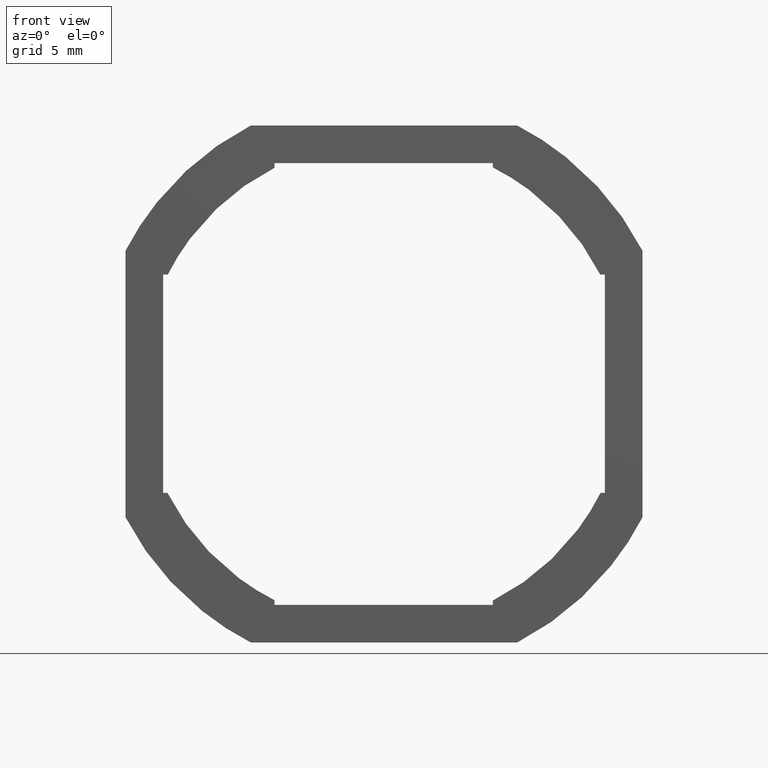
[diagram: clean part render]
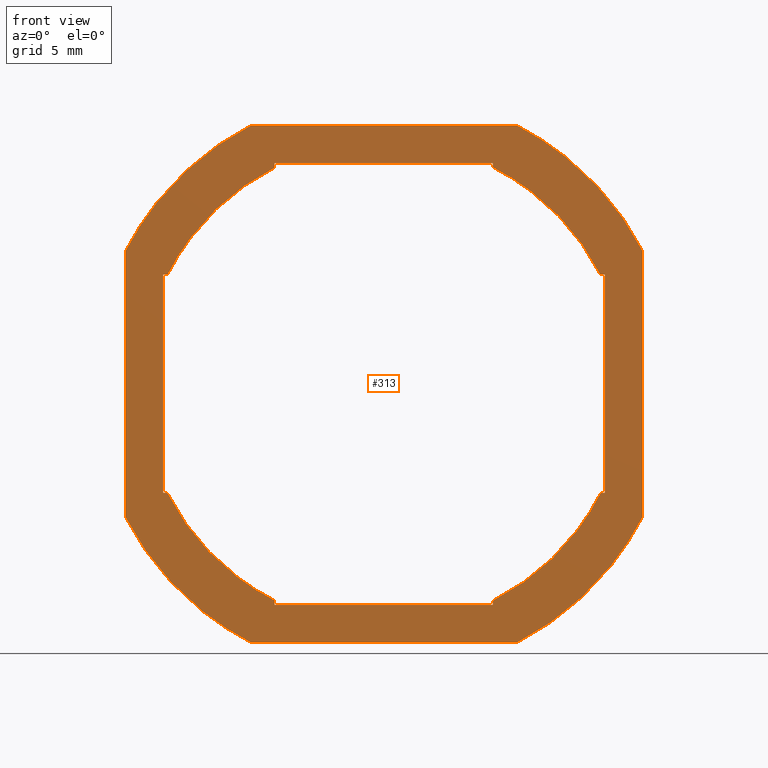
[diagram: same view with one face highlighted and labeled with its STEP entity id]
A machine part, front view. The second image highlights one B-rep face of the part: STEP entity #313.
In plain terms, the highlighted face is a freeform B-spline surface patch.
Its self-contained STEP definition (entity closure, byte-faithful):
#44=CARTESIAN_POINT('',(-13.198801030982510,0.0,13.198801030982469));
#45=CARTESIAN_POINT('',(13.198801245559199,0.0,13.198801030982469));
#46=CARTESIAN_POINT('',(-13.198801030982510,0.0,-13.198801245559221));
#47=CARTESIAN_POINT('',(13.198801245559199,0.0,-13.198801245559221));
#48=B_SPLINE_SURFACE_WITH_KNOTS('',1,1,((#44,#46),(#45,#47)),.UNSPECIFIED.,.F.,.F.,.U.,(2,2),(2,2),(0.0,26.397602276541718),(0.0,26.397602276541701),.UNSPECIFIED.);
#49=CARTESIAN_POINT('',(-6.184658732181810,0.0,12.000000569969499));
#50=VERTEX_POINT('',#49);
#51=CARTESIAN_POINT('',(6.184658732181830,0.0,12.000000569969499));
#52=VERTEX_POINT('',#51);
#53=CARTESIAN_POINT('',(-6.184658732181810,0.0,12.000000569969499));
#54=CARTESIAN_POINT('',(6.184658732181830,0.0,12.000000569969499));
#55=QUASI_UNIFORM_CURVE('',1,(#53,#54),.UNSPECIFIED.,.F.,.U.);
#56=EDGE_CURVE('',#50,#52,#55,.T.);
#57=ORIENTED_EDGE('',*,*,#56,.F.);
#58=CARTESIAN_POINT('',(-12.000000569969400,0.0,6.184658732181750));
#59=VERTEX_POINT('',#58);
#60=CARTESIAN_POINT('',(-6.184658732181801,0.0,12.000000569969490));
#61=CARTESIAN_POINT('',(-10.022184869378352,0.0,10.022184869378339));
#62=CARTESIAN_POINT('',(-12.000000569969400,0.0,6.184658732181750));
#70=(BOUNDED_CURVE()B_SPLINE_CURVE(2,(#60,#61,#62),.UNSPECIFIED.,.F.,.U.)CURVE()GEOMETRIC_REPRESENTATION_ITEM()QUASI_UNIFORM_CURVE()RATIONAL_B_SPLINE_CURVE((1.0,0.952481132990554,1.0))REPRESENTATION_ITEM(''));
#71=EDGE_CURVE('',#50,#59,#70,.T.);
#72=ORIENTED_EDGE('',*,*,#71,.T.);
#73=CARTESIAN_POINT('',(-12.000000569969540,0.0,-6.184658732181720));
#74=VERTEX_POINT('',#73);
#75=CARTESIAN_POINT('',(-12.000000569969540,0.0,-6.184658732181720));
#76=CARTESIAN_POINT('',(-12.000000569969400,0.0,6.184658732181750));
#77=QUASI_UNIFORM_CURVE('',1,(#75,#76),.UNSPECIFIED.,.F.,.U.);
#78=EDGE_CURVE('',#74,#59,#77,.T.);
#79=ORIENTED_EDGE('',*,*,#78,.F.);
#80=CARTESIAN_POINT('',(-6.184658732181759,0.0,-12.000000569969419));
#81=VERTEX_POINT('',#80);
#82=CARTESIAN_POINT('',(-12.000000569969540,0.0,-6.184658732181720));
#83=CARTESIAN_POINT('',(-10.022184869378391,0.0,-10.022184869378325));
#84=CARTESIAN_POINT('',(-6.184658732181759,0.0,-12.000000569969419));
#92=(BOUNDED_CURVE()B_SPLINE_CURVE(2,(#82,#83,#84),.UNSPECIFIED.,.F.,.U.)CURVE()GEOMETRIC_REPRESENTATION_ITEM()QUASI_UNIFORM_CURVE()RATIONAL_B_SPLINE_CURVE((1.0,0.952481132990553,1.0))REPRESENTATION_ITEM(''));
#93=EDGE_CURVE('',#74,#81,#92,.T.);
#94=ORIENTED_EDGE('',*,*,#93,.T.);
#95=CARTESIAN_POINT('',(6.184658732181750,0.0,-12.000000569969520));
#96=VERTEX_POINT('',#95);
#97=CARTESIAN_POINT('',(6.184658732181750,0.0,-12.000000569969520));
#98=CARTESIAN_POINT('',(-6.184658732181759,0.0,-12.000000569969419));
#99=QUASI_UNIFORM_CURVE('',1,(#97,#98),.UNSPECIFIED.,.F.,.U.);
#100=EDGE_CURVE('',#96,#81,#99,.T.);
#101=ORIENTED_EDGE('',*,*,#100,.F.);
#102=CARTESIAN_POINT('',(12.000000569969419,0.0,-6.184658732181750));
#103=VERTEX_POINT('',#102);
#104=CARTESIAN_POINT('',(6.184658732181743,0.0,-12.000000569969520));
#105=CARTESIAN_POINT('',(10.022184869378338,0.0,-10.022184869378369));
#106=CARTESIAN_POINT('',(12.000000569969419,0.0,-6.184658732181750));
#114=(BOUNDED_CURVE()B_SPLINE_CURVE(2,(#104,#105,#106),.UNSPECIFIED.,.F.,.U.)CURVE()GEOMETRIC_REPRESENTATION_ITEM()QUASI_UNIFORM_CURVE()RATIONAL_B_SPLINE_CURVE((1.0,0.952481132990553,1.0))REPRESENTATION_ITEM(''));
#115=EDGE_CURVE('',#96,#103,#114,.T.);
#116=ORIENTED_EDGE('',*,*,#115,.T.);
#117=CARTESIAN_POINT('',(12.000000569969499,0.0,6.184658732181820));
#118=VERTEX_POINT('',#117);
#119=CARTESIAN_POINT('',(12.000000569969499,0.0,6.184658732181820));
#120=CARTESIAN_POINT('',(12.000000569969419,0.0,-6.184658732181750));
#121=QUASI_UNIFORM_CURVE('',1,(#119,#120),.UNSPECIFIED.,.F.,.U.);
#122=EDGE_CURVE('',#118,#103,#121,.T.);
#123=ORIENTED_EDGE('',*,*,#122,.F.);
#124=CARTESIAN_POINT('',(12.000000569969499,0.0,6.184658732181810));
#125=CARTESIAN_POINT('',(10.022184869378350,0.0,10.022184869378339));
#126=CARTESIAN_POINT('',(6.184658732181829,0.0,12.000000569969499));
#134=(BOUNDED_CURVE()B_SPLINE_CURVE(2,(#124,#125,#126),.UNSPECIFIED.,.F.,.U.)CURVE()GEOMETRIC_REPRESENTATION_ITEM()QUASI_UNIFORM_CURVE()RATIONAL_B_SPLINE_CURVE((1.0,0.952481132990554,1.0))REPRESENTATION_ITEM(''));
#135=EDGE_CURVE('',#118,#52,#134,.T.);
#136=ORIENTED_EDGE('',*,*,#135,.T.);
#137=EDGE_LOOP('',(#57,#72,#79,#94,#101,#116,#123,#136));
#138=FACE_OUTER_BOUND('',#137,.T.);
#139=CARTESIAN_POINT('',(10.050000477349361,0.0,5.055690104038270));
#140=VERTEX_POINT('',#139);
#141=CARTESIAN_POINT('',(5.055690104038360,0.0,10.050000477349300));
#142=VERTEX_POINT('',#141);
#143=CARTESIAN_POINT('',(10.050000477349350,0.0,5.055690104038258));
#144=CARTESIAN_POINT('',(8.378465806703092,0.0,8.378465806703007));
#145=CARTESIAN_POINT('',(5.055690104038360,0.0,10.050000477349300));
#153=(BOUNDED_CURVE()B_SPLINE_CURVE(2,(#143,#144,#145),.UNSPECIFIED.,.F.,.U.)CURVE()GEOMETRIC_REPRESENTATION_ITEM()QUASI_UNIFORM_CURVE()RATIONAL_B_SPLINE_CURVE((1.0,0.949452065534999,1.0))REPRESENTATION_ITEM(''));
#154=EDGE_CURVE('',#140,#142,#153,.T.);
#155=ORIENTED_EDGE('',*,*,#154,.F.);
#156=CARTESIAN_POINT('',(10.050000477349400,0.0,5.081069177405830));
#157=VERTEX_POINT('',#156);
#158=CARTESIAN_POINT('',(10.050000477349400,0.0,5.081069177405830));
#159=CARTESIAN_POINT('',(10.050000477349361,0.0,5.055690104038270));
#160=QUASI_UNIFORM_CURVE('',1,(#158,#159),.UNSPECIFIED.,.F.,.U.);
#161=EDGE_CURVE('',#157,#140,#160,.T.);
#162=ORIENTED_EDGE('',*,*,#161,.F.);
#163=CARTESIAN_POINT('',(10.250000486848860,0.0,5.081069177405830));
#164=VERTEX_POINT('',#163);
#165=CARTESIAN_POINT('',(10.250000486848860,0.0,5.081069177405830));
#166=CARTESIAN_POINT('',(10.050000477349400,0.0,5.081069177405830));
#167=QUASI_UNIFORM_CURVE('',1,(#165,#166),.UNSPECIFIED.,.F.,.U.);
#168=EDGE_CURVE('',#164,#157,#167,.T.);
#169=ORIENTED_EDGE('',*,*,#168,.F.);
#170=CARTESIAN_POINT('',(10.250000486848860,0.0,-5.055690104038380));
#171=VERTEX_POINT('',#170);
#172=CARTESIAN_POINT('',(10.250000486848860,0.0,-5.055690104038380));
#173=CARTESIAN_POINT('',(10.250000486848860,0.0,5.081069177405830));
#174=QUASI_UNIFORM_CURVE('',1,(#172,#173),.UNSPECIFIED.,.F.,.U.);
#175=EDGE_CURVE('',#171,#164,#174,.T.);
#176=ORIENTED_EDGE('',*,*,#175,.F.);
#177=CARTESIAN_POINT('',(10.050000477349320,0.0,-5.055690104038360));
#178=VERTEX_POINT('',#177);
#179=CARTESIAN_POINT('',(10.050000477349320,0.0,-5.055690104038360));
#180=CARTESIAN_POINT('',(10.250000486848860,0.0,-5.055690104038380));
#181=QUASI_UNIFORM_CURVE('',1,(#179,#180),.UNSPECIFIED.,.F.,.U.);
#182=EDGE_CURVE('',#178,#171,#181,.T.);
#183=ORIENTED_EDGE('',*,*,#182,.F.);
#184=CARTESIAN_POINT('',(5.055690104038360,0.0,-10.050000477349300));
#185=VERTEX_POINT('',#184);
#186=CARTESIAN_POINT('',(5.055690104038356,0.0,-10.050000477349300));
#187=CARTESIAN_POINT('',(8.378465806703035,0.0,-8.378465806703034));
#188=CARTESIAN_POINT('',(10.050000477349309,0.0,-5.055690104038351));
#196=(BOUNDED_CURVE()B_SPLINE_CURVE(2,(#186,#187,#188),.UNSPECIFIED.,.F.,.U.)CURVE()GEOMETRIC_REPRESENTATION_ITEM()QUASI_UNIFORM_CURVE()RATIONAL_B_SPLINE_CURVE((1.0,0.949452065535000,1.0))REPRESENTATION_ITEM(''));
#197=EDGE_CURVE('',#185,#178,#196,.T.);
#198=ORIENTED_EDGE('',*,*,#197,.F.);
#199=CARTESIAN_POINT('',(5.055690104038391,0.0,-10.250000486848879));
#200=VERTEX_POINT('',#199);
#201=CARTESIAN_POINT('',(5.055690104038391,0.0,-10.250000486848879));
#202=CARTESIAN_POINT('',(5.055690104038360,0.0,-10.050000477349300));
#203=QUASI_UNIFORM_CURVE('',1,(#201,#202),.UNSPECIFIED.,.F.,.U.);
#204=EDGE_CURVE('',#200,#185,#203,.T.);
#205=ORIENTED_EDGE('',*,*,#204,.F.);
#206=CARTESIAN_POINT('',(-5.081069177405810,0.0,-10.250000486848879));
#207=VERTEX_POINT('',#206);
#208=CARTESIAN_POINT('',(-5.081069177405810,0.0,-10.250000486848879));
#209=CARTESIAN_POINT('',(5.055690104038391,0.0,-10.250000486848879));
#210=QUASI_UNIFORM_CURVE('',1,(#208,#209),.UNSPECIFIED.,.F.,.U.);
#211=EDGE_CURVE('',#207,#200,#210,.T.);
#212=ORIENTED_EDGE('',*,*,#211,.F.);
#213=CARTESIAN_POINT('',(-5.081069177405810,0.0,-10.050000477349400));
#214=VERTEX_POINT('',#213);
#215=CARTESIAN_POINT('',(-5.081069177405810,0.0,-10.050000477349400));
#216=CARTESIAN_POINT('',(-5.081069177405810,0.0,-10.250000486848879));
#217=QUASI_UNIFORM_CURVE('',1,(#215,#216),.UNSPECIFIED.,.F.,.U.);
#218=EDGE_CURVE('',#214,#207,#217,.T.);
#219=ORIENTED_EDGE('',*,*,#218,.F.);
#220=CARTESIAN_POINT('',(-5.055690104038270,0.0,-10.050000477349339));
#221=VERTEX_POINT('',#220);
#222=CARTESIAN_POINT('',(-5.055690104038270,0.0,-10.050000477349339));
#223=CARTESIAN_POINT('',(-5.081069177405810,0.0,-10.050000477349400));
#224=QUASI_UNIFORM_CURVE('',1,(#222,#223),.UNSPECIFIED.,.F.,.U.);
#225=EDGE_CURVE('',#221,#214,#224,.T.);
#226=ORIENTED_EDGE('',*,*,#225,.F.);
#227=CARTESIAN_POINT('',(-10.050000477349300,0.0,-5.055690104038360));
#228=VERTEX_POINT('',#227);
#229=CARTESIAN_POINT('',(-10.050000477349290,0.0,-5.055690104038348));
#230=CARTESIAN_POINT('',(-8.378465806703003,0.0,-8.378465806703074));
#231=CARTESIAN_POINT('',(-5.055690104038267,0.0,-10.050000477349339));
#239=(BOUNDED_CURVE()B_SPLINE_CURVE(2,(#229,#230,#231),.UNSPECIFIED.,.F.,.U.)CURVE()GEOMETRIC_REPRESENTATION_ITEM()QUASI_UNIFORM_CURVE()RATIONAL_B_SPLINE_CURVE((1.0,0.949452065534999,1.0))REPRESENTATION_ITEM(''));
#240=EDGE_CURVE('',#228,#221,#239,.T.);
#241=ORIENTED_EDGE('',*,*,#240,.F.);
#242=CARTESIAN_POINT('',(-10.250000486848901,0.0,-5.055690104038380));
#243=VERTEX_POINT('',#242);
#244=CARTESIAN_POINT('',(-10.250000486848901,0.0,-5.055690104038380));
#245=CARTESIAN_POINT('',(-10.050000477349300,0.0,-5.055690104038360));
#246=QUASI_UNIFORM_CURVE('',1,(#244,#245),.UNSPECIFIED.,.F.,.U.);
#247=EDGE_CURVE('',#243,#228,#246,.T.);
#248=ORIENTED_EDGE('',*,*,#247,.F.);
#249=CARTESIAN_POINT('',(-10.250000486848901,0.0,5.081069177405820));
#250=VERTEX_POINT('',#249);
#251=CARTESIAN_POINT('',(-10.250000486848901,0.0,5.081069177405820));
#252=CARTESIAN_POINT('',(-10.250000486848901,0.0,-5.055690104038380));
#253=QUASI_UNIFORM_CURVE('',1,(#251,#252),.UNSPECIFIED.,.F.,.U.);
#254=EDGE_CURVE('',#250,#243,#253,.T.);
#255=ORIENTED_EDGE('',*,*,#254,.F.);
#256=CARTESIAN_POINT('',(-10.050000477349400,0.0,5.081069177405820));
#257=VERTEX_POINT('',#256);
#258=CARTESIAN_POINT('',(-10.050000477349400,0.0,5.081069177405820));
#259=CARTESIAN_POINT('',(-10.250000486848901,0.0,5.081069177405820));
#260=QUASI_UNIFORM_CURVE('',1,(#258,#259),.UNSPECIFIED.,.F.,.U.);
#261=EDGE_CURVE('',#257,#250,#260,.T.);
#262=ORIENTED_EDGE('',*,*,#261,.F.);
#263=CARTESIAN_POINT('',(-10.050000477349339,0.0,5.055690104038281));
#264=VERTEX_POINT('',#263);
#265=CARTESIAN_POINT('',(-10.050000477349339,0.0,5.055690104038281));
#266=CARTESIAN_POINT('',(-10.050000477349400,0.0,5.081069177405820));
#267=QUASI_UNIFORM_CURVE('',1,(#265,#266),.UNSPECIFIED.,.F.,.U.);
#268=EDGE_CURVE('',#264,#257,#267,.T.);
#269=ORIENTED_EDGE('',*,*,#268,.F.);
#270=CARTESIAN_POINT('',(-5.055690104038261,0.0,10.050000477349361));
#271=VERTEX_POINT('',#270);
#272=CARTESIAN_POINT('',(-5.055690104038261,0.0,10.050000477349350));
#273=CARTESIAN_POINT('',(-8.378465806703053,0.0,8.378465806703066));
#274=CARTESIAN_POINT('',(-10.050000477349339,0.0,5.055690104038275));
#282=(BOUNDED_CURVE()B_SPLINE_CURVE(2,(#272,#273,#274),.UNSPECIFIED.,.F.,.U.)CURVE()GEOMETRIC_REPRESENTATION_ITEM()QUASI_UNIFORM_CURVE()RATIONAL_B_SPLINE_CURVE((1.0,0.949452065534997,1.0))REPRESENTATION_ITEM(''));
#283=EDGE_CURVE('',#271,#264,#282,.T.);
#284=ORIENTED_EDGE('',*,*,#283,.F.);
#285=CARTESIAN_POINT('',(-5.081069177405820,0.0,10.050000477349400));
#286=VERTEX_POINT('',#285);
#287=CARTESIAN_POINT('',(-5.081069177405820,0.0,10.050000477349400));
#288=CARTESIAN_POINT('',(-5.055690104038261,0.0,10.050000477349361));
#289=QUASI_UNIFORM_CURVE('',1,(#287,#288),.UNSPECIFIED.,.F.,.U.);
#290=EDGE_CURVE('',#286,#271,#289,.T.);
#291=ORIENTED_EDGE('',*,*,#290,.F.);
#292=CARTESIAN_POINT('',(-5.081069177405820,0.0,10.250000486848879));
#293=VERTEX_POINT('',#292);
#294=CARTESIAN_POINT('',(-5.081069177405820,0.0,10.250000486848879));
#295=CARTESIAN_POINT('',(-5.081069177405820,0.0,10.050000477349400));
#296=QUASI_UNIFORM_CURVE('',1,(#294,#295),.UNSPECIFIED.,.F.,.U.);
#297=EDGE_CURVE('',#293,#286,#296,.T.);
#298=ORIENTED_EDGE('',*,*,#297,.F.);
#299=CARTESIAN_POINT('',(5.055690104038380,0.0,10.250000486848879));
#300=VERTEX_POINT('',#299);
#301=CARTESIAN_POINT('',(5.055690104038380,0.0,10.250000486848879));
#302=CARTESIAN_POINT('',(-5.081069177405820,0.0,10.250000486848879));
#303=QUASI_UNIFORM_CURVE('',1,(#301,#302),.UNSPECIFIED.,.F.,.U.);
#304=EDGE_CURVE('',#300,#293,#303,.T.);
#305=ORIENTED_EDGE('',*,*,#304,.F.);
#306=CARTESIAN_POINT('',(5.055690104038360,0.0,10.050000477349300));
#307=CARTESIAN_POINT('',(5.055690104038380,0.0,10.250000486848879));
#308=QUASI_UNIFORM_CURVE('',1,(#306,#307),.UNSPECIFIED.,.F.,.U.);
#309=EDGE_CURVE('',#142,#300,#308,.T.);
#310=ORIENTED_EDGE('',*,*,#309,.F.);
#311=EDGE_LOOP('',(#155,#162,#169,#176,#183,#198,#205,#212,#219,#226,#241,#248,#255,#262,#269,#284,#291,#298,#305,#310));
#312=FACE_BOUND('',#311,.T.);
#313=ADVANCED_FACE('',(#138,#312),#48,.F.);